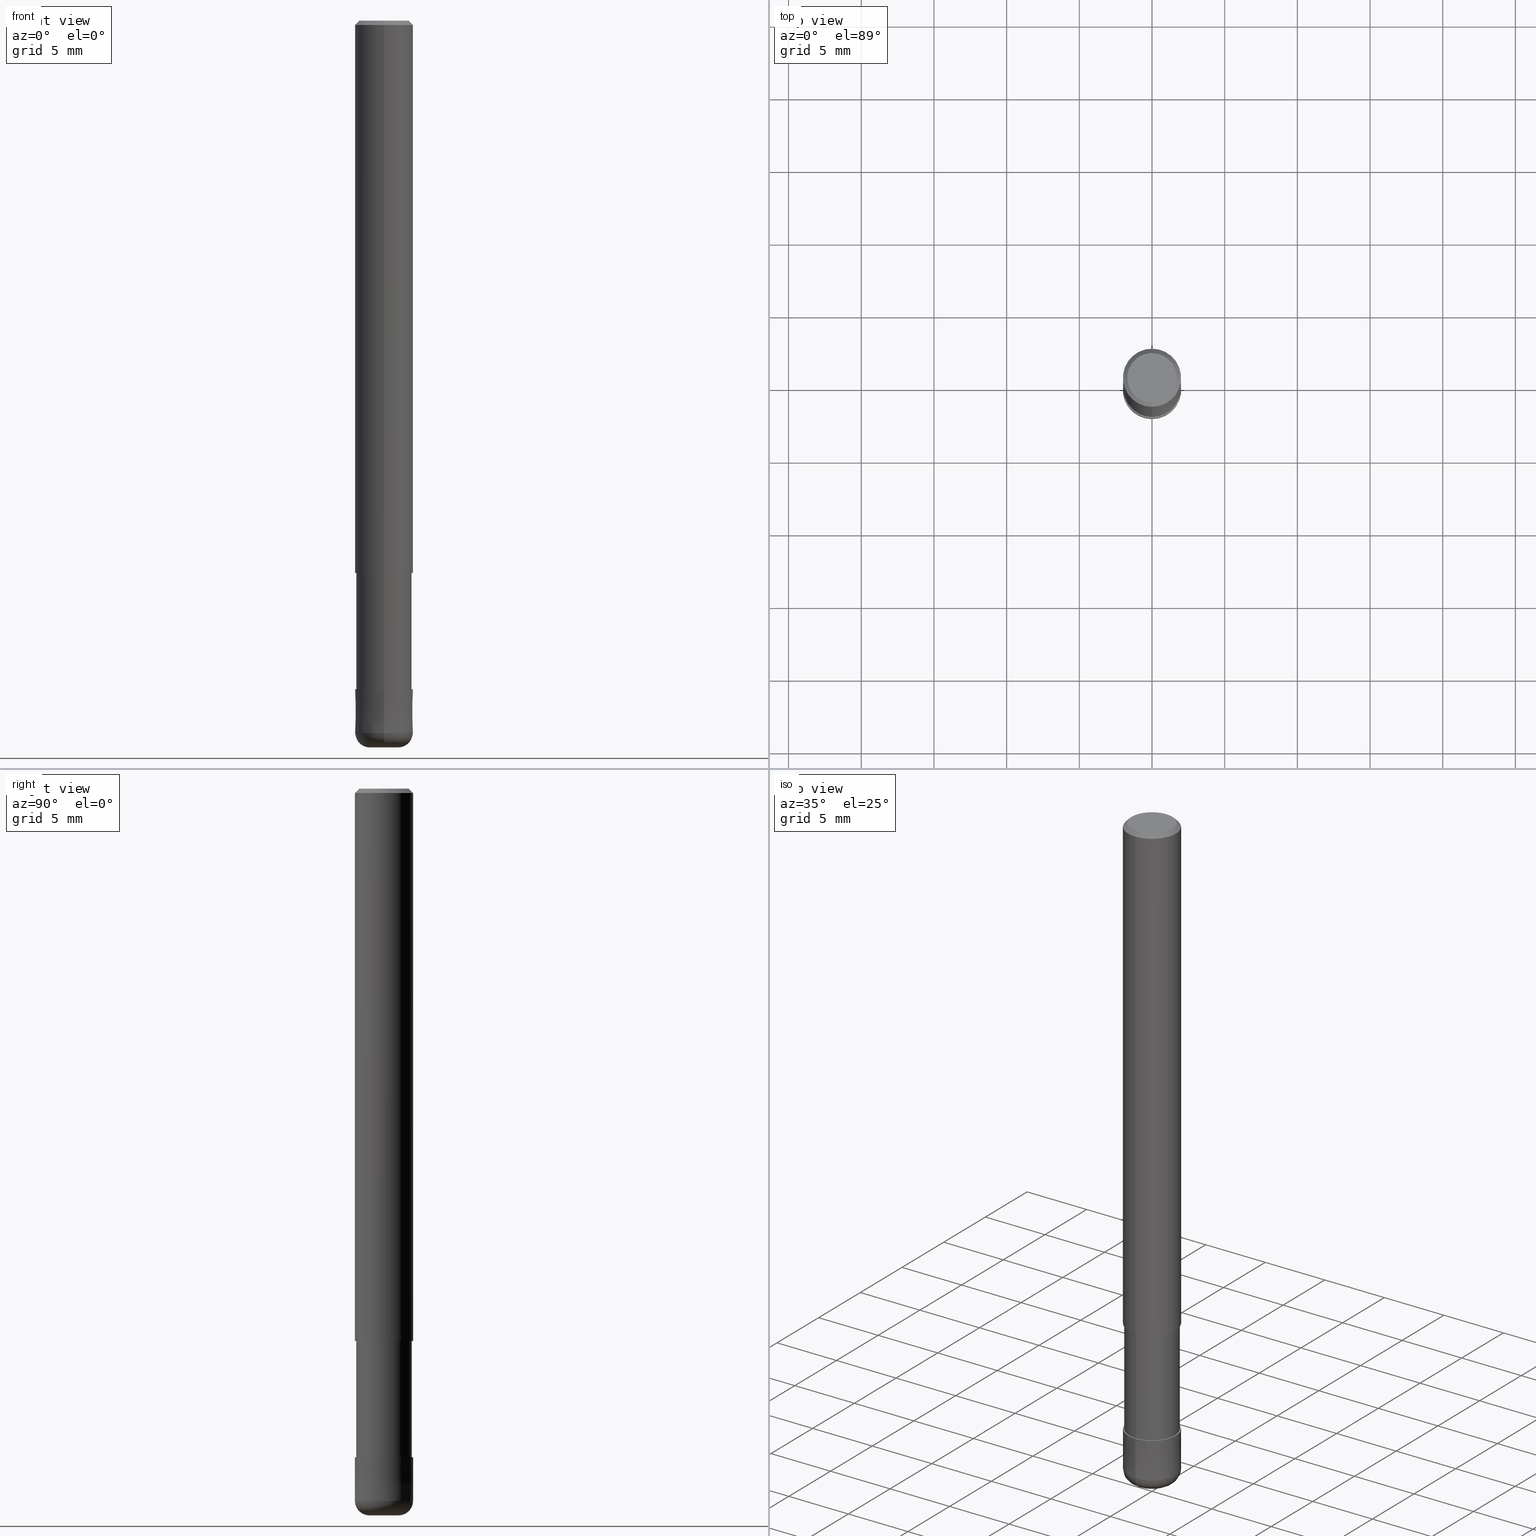
[diagram: canonical four-view strip — front | top / right | iso, engineering-drawing reading convention]
A machine part, canonical four-view strip (front | top / right | iso — engineering-drawing reading convention). The complete STEP part file that produces these views, byte-faithful:
ISO-10303-21;
HEADER;
FILE_DESCRIPTION(('no description'),'unknown implementation level');
FILE_NAME('HRRS4040-10-12S-Huellk.stp','  ',('CIMSOURCE GmbH'),('CADClick - KiM GmbH - www.kimweb.de'),'unknown preprocess','ACIS','unknown authorization');
FILE_SCHEMA(('automotive_design'));
ENDSEC;
DATA;
#1=MECHANICAL_DESIGN_GEOMETRIC_PRESENTATION_REPRESENTATION(' ',(#14,#15,#16,#17,#18,#19,#20,#21,#22,#23,#24,#25,#26,#27,#28,#29,#30,#31,#32,#33,#34,#35,#36,#37,#38,#39,#40,#41,#42,#43,#44,#45,#46,#47,#48,#49,#50,#51,#52,#53,#54,#55,#56,#57,#58,#59,#60,#61,#62,#63,#64,#65,#66,#67,#68,#69,#70,#71,#72),#10);
#2=PRODUCT_DEFINITION_CONTEXT('',#73,'design');
#3=APPLICATION_PROTOCOL_DEFINITION('INTERNATIONAL STANDARD','automotive_design',1994,#73);
#4=PRODUCT_CATEGORY_RELATIONSHIP('NONE','NONE',#74,#75);
#5=SHAPE_DEFINITION_REPRESENTATION(#76,#77);
#6=PRODUCT_DEFINITION_CONTEXT('',#78,'design');
#7=APPLICATION_PROTOCOL_DEFINITION('INTERNATIONAL STANDARD','automotive_design',1994,#78);
#8=PRODUCT_CATEGORY_RELATIONSHIP('NONE','NONE',#79,#80);
#9=SHAPE_DEFINITION_REPRESENTATION(#81,#82);
#10= (GEOMETRIC_REPRESENTATION_CONTEXT(3)GLOBAL_UNCERTAINTY_ASSIGNED_CONTEXT((#85))GLOBAL_UNIT_ASSIGNED_CONTEXT((#87,#88,#89))REPRESENTATION_CONTEXT('NONE','WORKSPACE'));
#14=STYLED_ITEM('',(#91),#92);
#15=STYLED_ITEM('',(#93),#94);
#16=STYLED_ITEM('',(#95),#96);
#17=STYLED_ITEM('',(#97),#98);
#18=STYLED_ITEM('',(#99),#100);
#19=STYLED_ITEM('',(#101),#102);
#20=STYLED_ITEM('',(#103),#104);
#21=STYLED_ITEM('',(#105),#106);
#22=STYLED_ITEM('',(#107),#108);
#23=STYLED_ITEM('',(#109),#110);
#24=STYLED_ITEM('',(#111),#112);
#25=STYLED_ITEM('',(#113),#114);
#26=STYLED_ITEM('',(#115),#116);
#27=STYLED_ITEM('',(#117),#118);
#28=STYLED_ITEM('',(#119),#120);
#29=STYLED_ITEM('',(#121),#122);
#30=STYLED_ITEM('',(#123),#124);
#31=STYLED_ITEM('',(#125),#126);
#32=STYLED_ITEM('',(#127),#128);
#33=STYLED_ITEM('',(#129),#130);
#34=STYLED_ITEM('',(#131),#132);
#35=STYLED_ITEM('',(#133),#134);
#36=STYLED_ITEM('',(#135),#136);
#37=STYLED_ITEM('',(#137),#138);
#38=STYLED_ITEM('',(#139),#140);
#39=STYLED_ITEM('',(#141),#142);
#40=STYLED_ITEM('',(#143),#144);
#41=STYLED_ITEM('',(#145),#146);
#42=STYLED_ITEM('',(#147),#148);
#43=STYLED_ITEM('',(#149),#150);
#44=STYLED_ITEM('',(#151),#152);
#45=STYLED_ITEM('',(#153),#154);
#46=STYLED_ITEM('',(#155),#156);
#47=STYLED_ITEM('',(#157),#158);
#48=STYLED_ITEM('',(#159),#160);
#49=STYLED_ITEM('',(#161),#162);
#50=STYLED_ITEM('',(#163),#164);
#51=STYLED_ITEM('',(#165),#166);
#52=STYLED_ITEM('',(#167),#168);
#53=STYLED_ITEM('',(#169),#170);
#54=STYLED_ITEM('',(#171),#172);
#55=STYLED_ITEM('',(#173),#174);
#56=STYLED_ITEM('',(#175),#176);
#57=STYLED_ITEM('',(#177),#178);
#58=STYLED_ITEM('',(#179),#180);
#59=STYLED_ITEM('',(#181),#182);
#60=STYLED_ITEM('',(#183),#184);
#61=STYLED_ITEM('',(#185),#186);
#62=STYLED_ITEM('',(#187),#188);
#63=STYLED_ITEM('',(#189),#190);
#64=STYLED_ITEM('',(#191),#192);
#65=STYLED_ITEM('',(#193),#194);
#66=STYLED_ITEM('',(#195),#196);
#67=STYLED_ITEM('',(#197),#198);
#68=STYLED_ITEM('',(#199),#200);
#69=STYLED_ITEM('',(#201),#202);
#70=STYLED_ITEM('',(#203),#204);
#71=STYLED_ITEM('',(#205),#206);
#72=STYLED_ITEM('',(#207),#208);
#73=APPLICATION_CONTEXT(' ');
#74=PRODUCT_CATEGORY('part','NONE');
#75=PRODUCT_RELATED_PRODUCT_CATEGORY('detail',' ',(#209));
#76=PRODUCT_DEFINITION_SHAPE('NONE','NONE',#210);
#77=ADVANCED_BREP_SHAPE_REPRESENTATION('1',(#118,#211),#10);
#78=APPLICATION_CONTEXT(' ');
#79=PRODUCT_CATEGORY('part','NONE');
#80=PRODUCT_RELATED_PRODUCT_CATEGORY('detail',' ',(#212));
#81=PRODUCT_DEFINITION_SHAPE('NONE','NONE',#213);
#82=ADVANCED_BREP_SHAPE_REPRESENTATION('2',(#144,#214),#10);
#85=UNCERTAINTY_MEASURE_WITH_UNIT(LENGTH_MEASURE(1.0E-006),#87,'','');
#87= (CONVERSION_BASED_UNIT('MILLIMETRE',#217)LENGTH_UNIT()NAMED_UNIT(#220));
#88= (NAMED_UNIT(#222)PLANE_ANGLE_UNIT()SI_UNIT($,.RADIAN.));
#89= (NAMED_UNIT(#222)SOLID_ANGLE_UNIT()SI_UNIT($,.STERADIAN.));
#91=PRESENTATION_STYLE_ASSIGNMENT((#228));
#92=EDGE_CURVE('',#150,#138,#229,.T.);
#93=PRESENTATION_STYLE_ASSIGNMENT((#230));
#94=ADVANCED_FACE('',(#231,#232),#233,.T.);
#95=PRESENTATION_STYLE_ASSIGNMENT((#234));
#96=EDGE_CURVE('',#160,#204,#235,.T.);
#97=PRESENTATION_STYLE_ASSIGNMENT((#236));
#98=ADVANCED_FACE('',(#237),#238,.T.);
#99=PRESENTATION_STYLE_ASSIGNMENT((#239));
#100=ADVANCED_FACE('',(#240),#241,.T.);
#101=PRESENTATION_STYLE_ASSIGNMENT((#242));
#102=ADVANCED_FACE('',(#243),#244,.T.);
#103=PRESENTATION_STYLE_ASSIGNMENT((#245));
#104=EDGE_CURVE('',#160,#182,#246,.T.);
#105=PRESENTATION_STYLE_ASSIGNMENT((#247));
#106=ADVANCED_FACE('',(#248),#249,.T.);
#107=PRESENTATION_STYLE_ASSIGNMENT((#250));
#108=ADVANCED_FACE('',(#251),#252,.T.);
#109=PRESENTATION_STYLE_ASSIGNMENT((#253));
#110=ADVANCED_FACE('',(#254),#255,.T.);
#111=PRESENTATION_STYLE_ASSIGNMENT((#256));
#112=VERTEX_POINT('',#257);
#113=PRESENTATION_STYLE_ASSIGNMENT((#258));
#114=VERTEX_POINT('',#259);
#115=PRESENTATION_STYLE_ASSIGNMENT((#260));
#116=EDGE_CURVE('',#114,#190,#261,.T.);
#117=PRESENTATION_STYLE_ASSIGNMENT((#262));
#118=MANIFOLD_SOLID_BREP('1',#263);
#119=PRESENTATION_STYLE_ASSIGNMENT((#264));
#120=EDGE_CURVE('',#182,#160,#265,.T.);
#121=PRESENTATION_STYLE_ASSIGNMENT((#266));
#122=EDGE_CURVE('',#124,#180,#267,.T.);
#123=PRESENTATION_STYLE_ASSIGNMENT((#268));
#124=VERTEX_POINT('',#269);
#125=PRESENTATION_STYLE_ASSIGNMENT((#270));
#126=EDGE_CURVE('',#190,#114,#271,.T.);
#127=PRESENTATION_STYLE_ASSIGNMENT((#272));
#128=EDGE_CURVE('',#134,#164,#273,.T.);
#129=PRESENTATION_STYLE_ASSIGNMENT((#274));
#130=ADVANCED_FACE('',(#275),#276,.T.);
#131=PRESENTATION_STYLE_ASSIGNMENT((#277));
#132=EDGE_CURVE('',#134,#166,#278,.T.);
#133=PRESENTATION_STYLE_ASSIGNMENT((#279));
#134=VERTEX_POINT('',#280);
#135=PRESENTATION_STYLE_ASSIGNMENT((#281));
#136=ADVANCED_FACE('',(#282),#283,.T.);
#137=PRESENTATION_STYLE_ASSIGNMENT((#284));
#138=VERTEX_POINT('',#285);
#139=PRESENTATION_STYLE_ASSIGNMENT((#286));
#140=EDGE_CURVE('',#162,#180,#287,.T.);
#141=PRESENTATION_STYLE_ASSIGNMENT((#288));
#142=EDGE_CURVE('',#166,#176,#289,.T.);
#143=PRESENTATION_STYLE_ASSIGNMENT((#290));
#144=MANIFOLD_SOLID_BREP('2',#291);
#145=PRESENTATION_STYLE_ASSIGNMENT((#292));
#146=EDGE_CURVE('',#124,#138,#293,.T.);
#147=PRESENTATION_STYLE_ASSIGNMENT((#294));
#148=EDGE_CURVE('',#138,#124,#295,.T.);
#149=PRESENTATION_STYLE_ASSIGNMENT((#296));
#150=VERTEX_POINT('',#297);
#151=PRESENTATION_STYLE_ASSIGNMENT((#298));
#152=EDGE_CURVE('',#154,#182,#299,.T.);
#153=PRESENTATION_STYLE_ASSIGNMENT((#300));
#154=VERTEX_POINT('',#301);
#155=PRESENTATION_STYLE_ASSIGNMENT((#302));
#156=EDGE_CURVE('',#112,#162,#303,.T.);
#157=PRESENTATION_STYLE_ASSIGNMENT((#304));
#158=EDGE_CURVE('',#150,#180,#305,.T.);
#159=PRESENTATION_STYLE_ASSIGNMENT((#306));
#160=VERTEX_POINT('',#307);
#161=PRESENTATION_STYLE_ASSIGNMENT((#308));
#162=VERTEX_POINT('',#309);
#163=PRESENTATION_STYLE_ASSIGNMENT((#310));
#164=VERTEX_POINT('',#311);
#165=PRESENTATION_STYLE_ASSIGNMENT((#312));
#166=VERTEX_POINT('',#313);
#167=PRESENTATION_STYLE_ASSIGNMENT((#314));
#168=ADVANCED_FACE('',(#315),#316,.T.);
#169=PRESENTATION_STYLE_ASSIGNMENT((#317));
#170=ADVANCED_FACE('',(#318),#319,.T.);
#171=PRESENTATION_STYLE_ASSIGNMENT((#320));
#172=EDGE_CURVE('',#204,#154,#321,.T.);
#173=PRESENTATION_STYLE_ASSIGNMENT((#322));
#174=ADVANCED_FACE('',(#323),#324,.T.);
#175=PRESENTATION_STYLE_ASSIGNMENT((#325));
#176=VERTEX_POINT('',#326);
#177=PRESENTATION_STYLE_ASSIGNMENT((#327));
#178=EDGE_CURVE('',#166,#114,#328,.T.);
#179=PRESENTATION_STYLE_ASSIGNMENT((#329));
#180=VERTEX_POINT('',#330);
#181=PRESENTATION_STYLE_ASSIGNMENT((#331));
#182=VERTEX_POINT('',#332);
#183=PRESENTATION_STYLE_ASSIGNMENT((#333));
#184=EDGE_CURVE('',#176,#166,#334,.T.);
#185=PRESENTATION_STYLE_ASSIGNMENT((#335));
#186=ADVANCED_FACE('',(#336),#337,.T.);
#187=PRESENTATION_STYLE_ASSIGNMENT((#338));
#188=ADVANCED_FACE('',(#339),#340,.T.);
#189=PRESENTATION_STYLE_ASSIGNMENT((#341));
#190=VERTEX_POINT('',#342);
#191=PRESENTATION_STYLE_ASSIGNMENT((#343));
#192=EDGE_CURVE('',#176,#164,#344,.T.);
#193=PRESENTATION_STYLE_ASSIGNMENT((#345));
#194=EDGE_CURVE('',#154,#204,#346,.T.);
#195=PRESENTATION_STYLE_ASSIGNMENT((#347));
#196=EDGE_CURVE('',#180,#150,#348,.T.);
#197=PRESENTATION_STYLE_ASSIGNMENT((#349));
#198=EDGE_CURVE('',#150,#112,#350,.T.);
#199=PRESENTATION_STYLE_ASSIGNMENT((#351));
#200=EDGE_CURVE('',#190,#176,#352,.T.);
#201=PRESENTATION_STYLE_ASSIGNMENT((#353));
#202=EDGE_CURVE('',#162,#112,#354,.T.);
#203=PRESENTATION_STYLE_ASSIGNMENT((#355));
#204=VERTEX_POINT('',#356);
#205=PRESENTATION_STYLE_ASSIGNMENT((#357));
#206=ADVANCED_FACE('',(#358),#359,.T.);
#207=PRESENTATION_STYLE_ASSIGNMENT((#360));
#208=EDGE_CURVE('',#164,#134,#361,.T.);
#209=PRODUCT('1','1','PART-1-DESC',(#362));
#210=PRODUCT_DEFINITION('NONE','NONE',#363,#2);
#211=AXIS2_PLACEMENT_3D('',#364,#365,#366);
#212=PRODUCT('2','2','PART-2-DESC',(#367));
#213=PRODUCT_DEFINITION('NONE','NONE',#368,#6);
#214=AXIS2_PLACEMENT_3D('',#369,#370,#371);
#217=LENGTH_MEASURE_WITH_UNIT(LENGTH_MEASURE(1.0),#372);
#220=DIMENSIONAL_EXPONENTS(1.0,0.0,0.0,0.0,0.0,0.0,0.0);
#222=DIMENSIONAL_EXPONENTS(0.0,0.0,0.0,0.0,0.0,0.0,0.0);
#228=CURVE_STYLE('',#373,POSITIVE_LENGTH_MEASURE(1.0E-006),#374);
#229=LINE('',#375,#376);
#230=SURFACE_STYLE_USAGE(.BOTH.,#377);
#231=FACE_OUTER_BOUND('',#378,.T.);
#232=FACE_BOUND('',#379,.T.);
#233=PLANE('',#380);
#234=CURVE_STYLE('',#381,POSITIVE_LENGTH_MEASURE(1.0E-006),#382);
#235=LINE('',#383,#384);
#236=SURFACE_STYLE_USAGE(.BOTH.,#385);
#237=FACE_OUTER_BOUND('',#386,.T.);
#238=TOROIDAL_SURFACE('',#387,0.999999999999999,1.0);
#239=SURFACE_STYLE_USAGE(.BOTH.,#388);
#240=FACE_OUTER_BOUND('',#389,.T.);
#241=CYLINDRICAL_SURFACE('',#390,2.0);
#242=SURFACE_STYLE_USAGE(.BOTH.,#391);
#243=FACE_OUTER_BOUND('',#392,.T.);
#244=PLANE('',#393);
#245=CURVE_STYLE('',#394,POSITIVE_LENGTH_MEASURE(1.0E-006),#395);
#246=CIRCLE('',#396,1.90995);
#247=SURFACE_STYLE_USAGE(.BOTH.,#397);
#248=FACE_OUTER_BOUND('',#398,.T.);
#249=PLANE('',#399);
#250=SURFACE_STYLE_USAGE(.BOTH.,#400);
#251=FACE_OUTER_BOUND('',#401,.T.);
#252=CONICAL_SURFACE('',#402,1.85,0.785398163397453);
#253=SURFACE_STYLE_USAGE(.BOTH.,#403);
#254=FACE_OUTER_BOUND('',#404,.T.);
#255=CYLINDRICAL_SURFACE('',#405,2.0);
#256=POINT_STYLE(' ',#406,POSITIVE_LENGTH_MEASURE(1.0E-006),#407);
#257=CARTESIAN_POINT('',(1.22460635382238E-016,-1.0,-50.0));
#258=POINT_STYLE(' ',#408,POSITIVE_LENGTH_MEASURE(1.0E-006),#409);
#259=CARTESIAN_POINT('',(0.0,2.0,-38.0));
#260=CURVE_STYLE('',#410,POSITIVE_LENGTH_MEASURE(1.0E-006),#411);
#261=CIRCLE('',#412,2.0);
#262=SURFACE_STYLE_USAGE(.BOTH.,#413);
#263=CLOSED_SHELL('',(#186,#100,#136,#94,#106,#108,#110,#188,#102));
#264=CURVE_STYLE('',#414,POSITIVE_LENGTH_MEASURE(1.0E-006),#415);
#265=CIRCLE('',#416,1.90995);
#266=CURVE_STYLE('',#417,POSITIVE_LENGTH_MEASURE(1.0E-006),#418);
#267=LINE('',#419,#420);
#268=POINT_STYLE(' ',#421,POSITIVE_LENGTH_MEASURE(1.0E-006),#422);
#269=CARTESIAN_POINT('',(0.0,1.9999,-46.0));
#270=CURVE_STYLE('',#423,POSITIVE_LENGTH_MEASURE(1.0E-006),#424);
#271=CIRCLE('',#425,2.0);
#272=CURVE_STYLE('',#426,POSITIVE_LENGTH_MEASURE(1.0E-006),#427);
#273=CIRCLE('',#428,1.7);
#274=SURFACE_STYLE_USAGE(.BOTH.,#429);
#275=FACE_OUTER_BOUND('',#430,.T.);
#276=PLANE('',#431);
#277=CURVE_STYLE('',#432,POSITIVE_LENGTH_MEASURE(1.0E-006),#433);
#278=LINE('',#434,#435);
#279=POINT_STYLE(' ',#436,POSITIVE_LENGTH_MEASURE(1.0E-006),#437);
#280=CARTESIAN_POINT('',(0.0,1.7,0.0));
#281=SURFACE_STYLE_USAGE(.BOTH.,#438);
#282=FACE_OUTER_BOUND('',#439,.T.);
#283=CONICAL_SURFACE('',#440,1.85,0.785398163397453);
#284=POINT_STYLE(' ',#441,POSITIVE_LENGTH_MEASURE(1.0E-006),#442);
#285=CARTESIAN_POINT('',(2.44909024700937E-016,-1.9999,-46.0));
#286=CURVE_STYLE('',#443,POSITIVE_LENGTH_MEASURE(1.0E-006),#444);
#287=CIRCLE('',#445,1.0);
#288=CURVE_STYLE('',#446,POSITIVE_LENGTH_MEASURE(1.0E-006),#447);
#289=CIRCLE('',#448,2.0);
#290=SURFACE_STYLE_USAGE(.BOTH.,#449);
#291=CLOSED_SHELL('',(#98,#168,#130,#206,#174,#170));
#292=CURVE_STYLE('',#450,POSITIVE_LENGTH_MEASURE(1.0E-006),#451);
#293=CIRCLE('',#452,1.9999);
#294=CURVE_STYLE('',#453,POSITIVE_LENGTH_MEASURE(1.0E-006),#454);
#295=CIRCLE('',#455,1.9999);
#296=POINT_STYLE(' ',#456,POSITIVE_LENGTH_MEASURE(1.0E-006),#457);
#297=CARTESIAN_POINT('',(2.44921270764475E-016,-2.0,-49.0));
#298=CURVE_STYLE('',#458,POSITIVE_LENGTH_MEASURE(1.0E-006),#459);
#299=LINE('',#460,#461);
#300=POINT_STYLE(' ',#462,POSITIVE_LENGTH_MEASURE(1.0E-006),#463);
#301=CARTESIAN_POINT('',(2.33893690548305E-016,-1.90995,-46.0));
#302=CURVE_STYLE('',#464,POSITIVE_LENGTH_MEASURE(1.0E-006),#465);
#303=CIRCLE('',#466,1.0);
#304=CURVE_STYLE('',#467,POSITIVE_LENGTH_MEASURE(1.0E-006),#468);
#305=CIRCLE('',#469,2.0);
#306=POINT_STYLE(' ',#470,POSITIVE_LENGTH_MEASURE(1.0E-006),#471);
#307=CARTESIAN_POINT('',(0.0,1.90995,-38.0));
#308=POINT_STYLE(' ',#472,POSITIVE_LENGTH_MEASURE(1.0E-006),#473);
#309=CARTESIAN_POINT('',(0.0,1.0,-50.0));
#310=POINT_STYLE(' ',#474,POSITIVE_LENGTH_MEASURE(1.0E-006),#475);
#311=CARTESIAN_POINT('',(2.08183080149804E-016,-1.7,0.0));
#312=POINT_STYLE(' ',#476,POSITIVE_LENGTH_MEASURE(1.0E-006),#477);
#313=CARTESIAN_POINT('',(0.0,2.0,-0.299999999999997));
#314=SURFACE_STYLE_USAGE(.BOTH.,#478);
#315=FACE_OUTER_BOUND('',#479,.T.);
#316=CONICAL_SURFACE('',#480,1.99995,3.3333333320984E-005);
#317=SURFACE_STYLE_USAGE(.BOTH.,#481);
#318=FACE_OUTER_BOUND('',#482,.T.);
#319=PLANE('',#483);
#320=CURVE_STYLE('',#484,POSITIVE_LENGTH_MEASURE(1.0E-006),#485);
#321=CIRCLE('',#486,1.90995);
#322=SURFACE_STYLE_USAGE(.BOTH.,#487);
#323=FACE_OUTER_BOUND('',#488,.T.);
#324=TOROIDAL_SURFACE('',#489,0.999999999999999,1.0);
#325=POINT_STYLE(' ',#490,POSITIVE_LENGTH_MEASURE(1.0E-006),#491);
#326=CARTESIAN_POINT('',(2.44921270764475E-016,-2.0,-0.299999999999997));
#327=CURVE_STYLE('',#492,POSITIVE_LENGTH_MEASURE(1.0E-006),#493);
#328=LINE('',#494,#495);
#329=POINT_STYLE(' ',#496,POSITIVE_LENGTH_MEASURE(1.0E-006),#497);
#330=CARTESIAN_POINT('',(0.0,2.0,-49.0));
#331=POINT_STYLE(' ',#498,POSITIVE_LENGTH_MEASURE(1.0E-006),#499);
#332=CARTESIAN_POINT('',(2.33893690548305E-016,-1.90995,-38.0));
#333=CURVE_STYLE('',#500,POSITIVE_LENGTH_MEASURE(1.0E-006),#501);
#334=CIRCLE('',#502,2.0);
#335=SURFACE_STYLE_USAGE(.BOTH.,#503);
#336=FACE_OUTER_BOUND('',#504,.T.);
#337=CYLINDRICAL_SURFACE('',#505,1.90995);
#338=SURFACE_STYLE_USAGE(.BOTH.,#506);
#339=FACE_OUTER_BOUND('',#507,.T.);
#340=CYLINDRICAL_SURFACE('',#508,1.90995);
#341=POINT_STYLE(' ',#509,POSITIVE_LENGTH_MEASURE(1.0E-006),#510);
#342=CARTESIAN_POINT('',(2.44921270764475E-016,-2.0,-38.0));
#343=CURVE_STYLE('',#511,POSITIVE_LENGTH_MEASURE(1.0E-006),#512);
#344=LINE('',#513,#514);
#345=CURVE_STYLE('',#515,POSITIVE_LENGTH_MEASURE(1.0E-006),#516);
#346=CIRCLE('',#517,1.90995);
#347=CURVE_STYLE('',#518,POSITIVE_LENGTH_MEASURE(1.0E-006),#519);
#348=CIRCLE('',#520,2.0);
#349=CURVE_STYLE('',#521,POSITIVE_LENGTH_MEASURE(1.0E-006),#522);
#350=CIRCLE('',#523,1.0);
#351=CURVE_STYLE('',#524,POSITIVE_LENGTH_MEASURE(1.0E-006),#525);
#352=LINE('',#526,#527);
#353=CURVE_STYLE('',#528,POSITIVE_LENGTH_MEASURE(1.0E-006),#529);
#354=CIRCLE('',#530,1.0);
#355=POINT_STYLE(' ',#531,POSITIVE_LENGTH_MEASURE(1.0E-006),#532);
#356=CARTESIAN_POINT('',(0.0,1.90995,-46.0));
#357=SURFACE_STYLE_USAGE(.BOTH.,#533);
#358=FACE_OUTER_BOUND('',#534,.T.);
#359=CONICAL_SURFACE('',#535,1.99995,3.3333333320984E-005);
#360=CURVE_STYLE('',#536,POSITIVE_LENGTH_MEASURE(1.0E-006),#537);
#361=CIRCLE('',#538,1.7);
#362=PRODUCT_CONTEXT('',#73,'mechanical');
#363=PRODUCT_DEFINITION_FORMATION_WITH_SPECIFIED_SOURCE(' ','NONE',#209,.NOT_KNOWN.);
#364=CARTESIAN_POINT('',(0.0,0.0,0.0));
#365=DIRECTION('',(0.0,0.0,1.0));
#366=DIRECTION('',(1.0,0.0,0.0));
#367=PRODUCT_CONTEXT('',#78,'mechanical');
#368=PRODUCT_DEFINITION_FORMATION_WITH_SPECIFIED_SOURCE(' ','NONE',#212,.NOT_KNOWN.);
#369=CARTESIAN_POINT('',(0.0,0.0,0.0));
#370=DIRECTION('',(0.0,0.0,1.0));
#371=DIRECTION('',(1.0,0.0,0.0));
#372= (NAMED_UNIT(#220)LENGTH_UNIT()SI_UNIT(.MILLI.,.METRE.));
#373=DRAUGHTING_PRE_DEFINED_CURVE_FONT('continuous');
#374=COLOUR_RGB('',0.800000011920929,0.800000011920929,0.800000011920929);
#375=CARTESIAN_POINT('',(2.44915147732706E-016,-1.99995,-47.5));
#376=VECTOR('',#540,1.0);
#377=SURFACE_SIDE_STYLE('',(#541));
#378=EDGE_LOOP('',(#542,#543));
#379=EDGE_LOOP('',(#544,#545));
#380=AXIS2_PLACEMENT_3D('',#546,#547,#548);
#381=DRAUGHTING_PRE_DEFINED_CURVE_FONT('continuous');
#382=COLOUR_RGB('',0.498039215803146,0.498039215803146,0.498039215803146);
#383=CARTESIAN_POINT('',(-2.33893690548305E-016,1.90995,-42.0));
#384=VECTOR('',#549,1.0);
#385=SURFACE_SIDE_STYLE('',(#550));
#386=EDGE_LOOP('',(#551,#552,#553,#554));
#387=AXIS2_PLACEMENT_3D('',#555,#556,#557);
#388=SURFACE_SIDE_STYLE('',(#558));
#389=EDGE_LOOP('',(#559,#560,#561,#562));
#390=AXIS2_PLACEMENT_3D('',#563,#564,#565);
#391=SURFACE_SIDE_STYLE('',(#566));
#392=EDGE_LOOP('',(#567,#568));
#393=AXIS2_PLACEMENT_3D('',#569,#570,#571);
#394=DRAUGHTING_PRE_DEFINED_CURVE_FONT('continuous');
#395=COLOUR_RGB('',0.498039215803146,0.498039215803146,0.498039215803146);
#396=AXIS2_PLACEMENT_3D('',#572,#573,#574);
#397=SURFACE_SIDE_STYLE('',(#575));
#398=EDGE_LOOP('',(#576,#577));
#399=AXIS2_PLACEMENT_3D('',#578,#579,#580);
#400=SURFACE_SIDE_STYLE('',(#581));
#401=EDGE_LOOP('',(#582,#583,#584,#585));
#402=AXIS2_PLACEMENT_3D('',#586,#587,#588);
#403=SURFACE_SIDE_STYLE('',(#589));
#404=EDGE_LOOP('',(#590,#591,#592,#593));
#405=AXIS2_PLACEMENT_3D('',#594,#595,#596);
#406=PRE_DEFINED_MARKER('');
#407=COLOUR_RGB('',0.800000011920929,0.800000011920929,0.800000011920929);
#408=PRE_DEFINED_MARKER('');
#409=COLOUR_RGB('',0.498039215803146,0.498039215803146,0.498039215803146);
#410=DRAUGHTING_PRE_DEFINED_CURVE_FONT('continuous');
#411=COLOUR_RGB('',0.498039215803146,0.498039215803146,0.498039215803146);
#412=AXIS2_PLACEMENT_3D('',#597,#598,#599);
#413=SURFACE_SIDE_STYLE('',(#600));
#414=DRAUGHTING_PRE_DEFINED_CURVE_FONT('continuous');
#415=COLOUR_RGB('',0.498039215803146,0.498039215803146,0.498039215803146);
#416=AXIS2_PLACEMENT_3D('',#601,#602,#603);
#417=DRAUGHTING_PRE_DEFINED_CURVE_FONT('continuous');
#418=COLOUR_RGB('',0.800000011920929,0.800000011920929,0.800000011920929);
#419=CARTESIAN_POINT('',(-2.44915147732706E-016,1.99995,-47.5));
#420=VECTOR('',#604,1.0);
#421=PRE_DEFINED_MARKER('');
#422=COLOUR_RGB('',0.800000011920929,0.800000011920929,0.800000011920929);
#423=DRAUGHTING_PRE_DEFINED_CURVE_FONT('continuous');
#424=COLOUR_RGB('',0.498039215803146,0.498039215803146,0.498039215803146);
#425=AXIS2_PLACEMENT_3D('',#605,#606,#607);
#426=DRAUGHTING_PRE_DEFINED_CURVE_FONT('continuous');
#427=COLOUR_RGB('',0.498039215803146,0.498039215803146,0.498039215803146);
#428=AXIS2_PLACEMENT_3D('',#608,#609,#610);
#429=SURFACE_SIDE_STYLE('',(#611));
#430=EDGE_LOOP('',(#612,#613));
#431=AXIS2_PLACEMENT_3D('',#614,#615,#616);
#432=DRAUGHTING_PRE_DEFINED_CURVE_FONT('continuous');
#433=COLOUR_RGB('',0.498039215803146,0.498039215803146,0.498039215803146);
#434=CARTESIAN_POINT('',(-2.2655217545714E-016,1.85,-0.149999999999999));
#435=VECTOR('',#617,1.0);
#436=PRE_DEFINED_MARKER('');
#437=COLOUR_RGB('',0.498039215803146,0.498039215803146,0.498039215803146);
#438=SURFACE_SIDE_STYLE('',(#618));
#439=EDGE_LOOP('',(#619,#620,#621,#622));
#440=AXIS2_PLACEMENT_3D('',#623,#624,#625);
#441=PRE_DEFINED_MARKER('');
#442=COLOUR_RGB('',0.800000011920929,0.800000011920929,0.800000011920929);
#443=DRAUGHTING_PRE_DEFINED_CURVE_FONT('continuous');
#444=COLOUR_RGB('',0.800000011920929,0.800000011920929,0.800000011920929);
#445=AXIS2_PLACEMENT_3D('',#626,#627,#628);
#446=DRAUGHTING_PRE_DEFINED_CURVE_FONT('continuous');
#447=COLOUR_RGB('',0.498039215803146,0.498039215803146,0.498039215803146);
#448=AXIS2_PLACEMENT_3D('',#629,#630,#631);
#449=SURFACE_SIDE_STYLE('',(#632));
#450=DRAUGHTING_PRE_DEFINED_CURVE_FONT('continuous');
#451=COLOUR_RGB('',0.800000011920929,0.800000011920929,0.800000011920929);
#452=AXIS2_PLACEMENT_3D('',#633,#634,#635);
#453=DRAUGHTING_PRE_DEFINED_CURVE_FONT('continuous');
#454=COLOUR_RGB('',0.800000011920929,0.800000011920929,0.800000011920929);
#455=AXIS2_PLACEMENT_3D('',#636,#637,#638);
#456=PRE_DEFINED_MARKER('');
#457=COLOUR_RGB('',0.800000011920929,0.800000011920929,0.800000011920929);
#458=DRAUGHTING_PRE_DEFINED_CURVE_FONT('continuous');
#459=COLOUR_RGB('',0.498039215803146,0.498039215803146,0.498039215803146);
#460=CARTESIAN_POINT('',(2.33893690548305E-016,-1.90995,-42.0));
#461=VECTOR('',#639,1.0);
#462=PRE_DEFINED_MARKER('');
#463=COLOUR_RGB('',0.498039215803146,0.498039215803146,0.498039215803146);
#464=DRAUGHTING_PRE_DEFINED_CURVE_FONT('continuous');
#465=COLOUR_RGB('',0.800000011920929,0.800000011920929,0.800000011920929);
#466=AXIS2_PLACEMENT_3D('',#640,#641,#642);
#467=DRAUGHTING_PRE_DEFINED_CURVE_FONT('continuous');
#468=COLOUR_RGB('',0.800000011920929,0.800000011920929,0.800000011920929);
#469=AXIS2_PLACEMENT_3D('',#643,#644,#645);
#470=PRE_DEFINED_MARKER('');
#471=COLOUR_RGB('',0.498039215803146,0.498039215803146,0.498039215803146);
#472=PRE_DEFINED_MARKER('');
#473=COLOUR_RGB('',0.800000011920929,0.800000011920929,0.800000011920929);
#474=PRE_DEFINED_MARKER('');
#475=COLOUR_RGB('',0.498039215803146,0.498039215803146,0.498039215803146);
#476=PRE_DEFINED_MARKER('');
#477=COLOUR_RGB('',0.498039215803146,0.498039215803146,0.498039215803146);
#478=SURFACE_SIDE_STYLE('',(#646));
#479=EDGE_LOOP('',(#647,#648,#649,#650));
#480=AXIS2_PLACEMENT_3D('',#651,#652,#653);
#481=SURFACE_SIDE_STYLE('',(#654));
#482=EDGE_LOOP('',(#655,#656));
#483=AXIS2_PLACEMENT_3D('',#657,#658,#659);
#484=DRAUGHTING_PRE_DEFINED_CURVE_FONT('continuous');
#485=COLOUR_RGB('',0.498039215803146,0.498039215803146,0.498039215803146);
#486=AXIS2_PLACEMENT_3D('',#660,#661,#662);
#487=SURFACE_SIDE_STYLE('',(#663));
#488=EDGE_LOOP('',(#664,#665,#666,#667));
#489=AXIS2_PLACEMENT_3D('',#668,#669,#670);
#490=PRE_DEFINED_MARKER('');
#491=COLOUR_RGB('',0.498039215803146,0.498039215803146,0.498039215803146);
#492=DRAUGHTING_PRE_DEFINED_CURVE_FONT('continuous');
#493=COLOUR_RGB('',0.498039215803146,0.498039215803146,0.498039215803146);
#494=CARTESIAN_POINT('',(-2.44921270764475E-016,2.0,-19.15));
#495=VECTOR('',#671,1.0);
#496=PRE_DEFINED_MARKER('');
#497=COLOUR_RGB('',0.800000011920929,0.800000011920929,0.800000011920929);
#498=PRE_DEFINED_MARKER('');
#499=COLOUR_RGB('',0.498039215803146,0.498039215803146,0.498039215803146);
#500=DRAUGHTING_PRE_DEFINED_CURVE_FONT('continuous');
#501=COLOUR_RGB('',0.498039215803146,0.498039215803146,0.498039215803146);
#502=AXIS2_PLACEMENT_3D('',#672,#673,#674);
#503=SURFACE_SIDE_STYLE('',(#675));
#504=EDGE_LOOP('',(#676,#677,#678,#679));
#505=AXIS2_PLACEMENT_3D('',#680,#681,#682);
#506=SURFACE_SIDE_STYLE('',(#683));
#507=EDGE_LOOP('',(#684,#685,#686,#687));
#508=AXIS2_PLACEMENT_3D('',#688,#689,#690);
#509=PRE_DEFINED_MARKER('');
#510=COLOUR_RGB('',0.498039215803146,0.498039215803146,0.498039215803146);
#511=DRAUGHTING_PRE_DEFINED_CURVE_FONT('continuous');
#512=COLOUR_RGB('',0.498039215803146,0.498039215803146,0.498039215803146);
#513=CARTESIAN_POINT('',(2.2655217545714E-016,-1.85,-0.149999999999999));
#514=VECTOR('',#691,1.0);
#515=DRAUGHTING_PRE_DEFINED_CURVE_FONT('continuous');
#516=COLOUR_RGB('',0.498039215803146,0.498039215803146,0.498039215803146);
#517=AXIS2_PLACEMENT_3D('',#692,#693,#694);
#518=DRAUGHTING_PRE_DEFINED_CURVE_FONT('continuous');
#519=COLOUR_RGB('',0.800000011920929,0.800000011920929,0.800000011920929);
#520=AXIS2_PLACEMENT_3D('',#695,#696,#697);
#521=DRAUGHTING_PRE_DEFINED_CURVE_FONT('continuous');
#522=COLOUR_RGB('',0.800000011920929,0.800000011920929,0.800000011920929);
#523=AXIS2_PLACEMENT_3D('',#698,#699,#700);
#524=DRAUGHTING_PRE_DEFINED_CURVE_FONT('continuous');
#525=COLOUR_RGB('',0.498039215803146,0.498039215803146,0.498039215803146);
#526=CARTESIAN_POINT('',(2.44921270764475E-016,-2.0,-19.15));
#527=VECTOR('',#701,1.0);
#528=DRAUGHTING_PRE_DEFINED_CURVE_FONT('continuous');
#529=COLOUR_RGB('',0.800000011920929,0.800000011920929,0.800000011920929);
#530=AXIS2_PLACEMENT_3D('',#702,#703,#704);
#531=PRE_DEFINED_MARKER('');
#532=COLOUR_RGB('',0.498039215803146,0.498039215803146,0.498039215803146);
#533=SURFACE_SIDE_STYLE('',(#705));
#534=EDGE_LOOP('',(#706,#707,#708,#709));
#535=AXIS2_PLACEMENT_3D('',#710,#711,#712);
#536=DRAUGHTING_PRE_DEFINED_CURVE_FONT('continuous');
#537=COLOUR_RGB('',0.498039215803146,0.498039215803146,0.498039215803146);
#538=AXIS2_PLACEMENT_3D('',#713,#714,#715);
#540=DIRECTION('',(-4.08202117713969E-021,3.33333333148111E-005,0.999999999444445));
#541=SURFACE_STYLE_FILL_AREA(#716);
#542=ORIENTED_EDGE('',*,*,#116,.T.);
#543=ORIENTED_EDGE('',*,*,#126,.T.);
#544=ORIENTED_EDGE('',*,*,#104,.F.);
#545=ORIENTED_EDGE('',*,*,#120,.F.);
#546=CARTESIAN_POINT('',(0.0,1.0,-38.0));
#547=DIRECTION('',(0.0,0.0,-1.0));
#548=DIRECTION('',(0.0,1.0,0.0));
#549=DIRECTION('',(0.0,0.0,-1.0));
#550=SURFACE_STYLE_FILL_AREA(#717);
#551=ORIENTED_EDGE('',*,*,#198,.F.);
#552=ORIENTED_EDGE('',*,*,#158,.T.);
#553=ORIENTED_EDGE('',*,*,#140,.F.);
#554=ORIENTED_EDGE('',*,*,#156,.F.);
#555=CARTESIAN_POINT('',(0.0,0.0,-49.0));
#556=DIRECTION('',(0.0,0.0,-1.0));
#557=DIRECTION('',(0.0,-1.0,0.0));
#558=SURFACE_STYLE_FILL_AREA(#718);
#559=ORIENTED_EDGE('',*,*,#178,.F.);
#560=ORIENTED_EDGE('',*,*,#142,.T.);
#561=ORIENTED_EDGE('',*,*,#200,.F.);
#562=ORIENTED_EDGE('',*,*,#116,.F.);
#563=CARTESIAN_POINT('',(0.0,0.0,-19.15));
#564=DIRECTION('',(-0.0,-0.0,1.0));
#565=DIRECTION('',(0.0,1.0,0.0));
#566=SURFACE_STYLE_FILL_AREA(#719);
#567=ORIENTED_EDGE('',*,*,#172,.T.);
#568=ORIENTED_EDGE('',*,*,#194,.T.);
#569=CARTESIAN_POINT('',(0.0,0.954975,-46.0));
#570=DIRECTION('',(0.0,0.0,-1.0));
#571=DIRECTION('',(0.0,1.0,0.0));
#572=CARTESIAN_POINT('',(0.0,0.0,-38.0));
#573=DIRECTION('',(0.0,0.0,-1.0));
#574=DIRECTION('',(0.0,1.0,0.0));
#575=SURFACE_STYLE_FILL_AREA(#720);
#576=ORIENTED_EDGE('',*,*,#128,.F.);
#577=ORIENTED_EDGE('',*,*,#208,.F.);
#578=CARTESIAN_POINT('',(0.0,0.85,0.0));
#579=DIRECTION('',(-0.0,0.0,1.0));
#580=DIRECTION('',(0.0,-1.0,0.0));
#581=SURFACE_STYLE_FILL_AREA(#721);
#582=ORIENTED_EDGE('',*,*,#132,.T.);
#583=ORIENTED_EDGE('',*,*,#184,.F.);
#584=ORIENTED_EDGE('',*,*,#192,.T.);
#585=ORIENTED_EDGE('',*,*,#208,.T.);
#586=CARTESIAN_POINT('',(0.0,0.0,-0.149999999999999));
#587=DIRECTION('',(0.0,-0.0,-1.0));
#588=DIRECTION('',(0.0,1.0,0.0));
#589=SURFACE_STYLE_FILL_AREA(#722);
#590=ORIENTED_EDGE('',*,*,#178,.T.);
#591=ORIENTED_EDGE('',*,*,#126,.F.);
#592=ORIENTED_EDGE('',*,*,#200,.T.);
#593=ORIENTED_EDGE('',*,*,#184,.T.);
#594=CARTESIAN_POINT('',(0.0,0.0,-19.15));
#595=DIRECTION('',(-0.0,-0.0,1.0));
#596=DIRECTION('',(0.0,1.0,0.0));
#597=CARTESIAN_POINT('',(0.0,0.0,-38.0));
#598=DIRECTION('',(0.0,0.0,-1.0));
#599=DIRECTION('',(0.0,1.0,0.0));
#600=SURFACE_STYLE_FILL_AREA(#723);
#601=CARTESIAN_POINT('',(0.0,0.0,-38.0));
#602=DIRECTION('',(0.0,0.0,-1.0));
#603=DIRECTION('',(0.0,1.0,0.0));
#604=DIRECTION('',(-4.08202117713969E-021,3.33333333148111E-005,-0.999999999444445));
#605=CARTESIAN_POINT('',(0.0,0.0,-38.0));
#606=DIRECTION('',(0.0,0.0,-1.0));
#607=DIRECTION('',(0.0,1.0,0.0));
#608=CARTESIAN_POINT('',(0.0,0.0,0.0));
#609=DIRECTION('',(0.0,0.0,-1.0));
#610=DIRECTION('',(0.0,1.0,0.0));
#611=SURFACE_STYLE_FILL_AREA(#724);
#612=ORIENTED_EDGE('',*,*,#146,.F.);
#613=ORIENTED_EDGE('',*,*,#148,.F.);
#614=CARTESIAN_POINT('',(0.0,0.99995,-46.0));
#615=DIRECTION('',(-0.0,0.0,1.0));
#616=DIRECTION('',(0.0,-1.0,0.0));
#617=DIRECTION('',(-8.6592745707194E-017,0.707106781186551,-0.707106781186544));
#618=SURFACE_STYLE_FILL_AREA(#725);
#619=ORIENTED_EDGE('',*,*,#132,.F.);
#620=ORIENTED_EDGE('',*,*,#128,.T.);
#621=ORIENTED_EDGE('',*,*,#192,.F.);
#622=ORIENTED_EDGE('',*,*,#142,.F.);
#623=CARTESIAN_POINT('',(0.0,0.0,-0.149999999999999));
#624=DIRECTION('',(0.0,-0.0,-1.0));
#625=DIRECTION('',(0.0,1.0,0.0));
#626=CARTESIAN_POINT('',(-1.22460635382238E-016,0.999999999999999,-49.0));
#627=DIRECTION('',(1.0,1.22460635382238E-016,0.0));
#628=DIRECTION('',(-1.22460635382238E-016,1.0,0.0));
#629=CARTESIAN_POINT('',(0.0,0.0,-0.299999999999997));
#630=DIRECTION('',(0.0,0.0,-1.0));
#631=DIRECTION('',(0.0,1.0,0.0));
#632=SURFACE_STYLE_FILL_AREA(#726);
#633=CARTESIAN_POINT('',(0.0,0.0,-46.0));
#634=DIRECTION('',(0.0,0.0,-1.0));
#635=DIRECTION('',(0.0,1.0,0.0));
#636=CARTESIAN_POINT('',(0.0,0.0,-46.0));
#637=DIRECTION('',(0.0,0.0,-1.0));
#638=DIRECTION('',(0.0,1.0,0.0));
#639=DIRECTION('',(-0.0,-0.0,1.0));
#640=CARTESIAN_POINT('',(0.0,0.0,-50.0));
#641=DIRECTION('',(0.0,0.0,-1.0));
#642=DIRECTION('',(0.0,1.0,0.0));
#643=CARTESIAN_POINT('',(0.0,0.0,-49.0));
#644=DIRECTION('',(0.0,0.0,-1.0));
#645=DIRECTION('',(0.0,1.0,0.0));
#646=SURFACE_STYLE_FILL_AREA(#727);
#647=ORIENTED_EDGE('',*,*,#122,.F.);
#648=ORIENTED_EDGE('',*,*,#146,.T.);
#649=ORIENTED_EDGE('',*,*,#92,.F.);
#650=ORIENTED_EDGE('',*,*,#196,.F.);
#651=CARTESIAN_POINT('',(0.0,0.0,-47.5));
#652=DIRECTION('',(0.0,-0.0,-1.0));
#653=DIRECTION('',(0.0,1.0,0.0));
#654=SURFACE_STYLE_FILL_AREA(#728);
#655=ORIENTED_EDGE('',*,*,#202,.T.);
#656=ORIENTED_EDGE('',*,*,#156,.T.);
#657=CARTESIAN_POINT('',(0.0,0.5,-50.0));
#658=DIRECTION('',(0.0,0.0,-1.0));
#659=DIRECTION('',(0.0,1.0,0.0));
#660=CARTESIAN_POINT('',(0.0,0.0,-46.0));
#661=DIRECTION('',(0.0,0.0,-1.0));
#662=DIRECTION('',(0.0,1.0,0.0));
#663=SURFACE_STYLE_FILL_AREA(#729);
#664=ORIENTED_EDGE('',*,*,#198,.T.);
#665=ORIENTED_EDGE('',*,*,#202,.F.);
#666=ORIENTED_EDGE('',*,*,#140,.T.);
#667=ORIENTED_EDGE('',*,*,#196,.T.);
#668=CARTESIAN_POINT('',(0.0,0.0,-49.0));
#669=DIRECTION('',(0.0,0.0,-1.0));
#670=DIRECTION('',(0.0,-1.0,0.0));
#671=DIRECTION('',(0.0,0.0,-1.0));
#672=CARTESIAN_POINT('',(0.0,0.0,-0.299999999999997));
#673=DIRECTION('',(0.0,0.0,-1.0));
#674=DIRECTION('',(0.0,1.0,0.0));
#675=SURFACE_STYLE_FILL_AREA(#730);
#676=ORIENTED_EDGE('',*,*,#96,.F.);
#677=ORIENTED_EDGE('',*,*,#104,.T.);
#678=ORIENTED_EDGE('',*,*,#152,.F.);
#679=ORIENTED_EDGE('',*,*,#172,.F.);
#680=CARTESIAN_POINT('',(0.0,0.0,-42.0));
#681=DIRECTION('',(-0.0,-0.0,1.0));
#682=DIRECTION('',(0.0,1.0,0.0));
#683=SURFACE_STYLE_FILL_AREA(#731);
#684=ORIENTED_EDGE('',*,*,#96,.T.);
#685=ORIENTED_EDGE('',*,*,#194,.F.);
#686=ORIENTED_EDGE('',*,*,#152,.T.);
#687=ORIENTED_EDGE('',*,*,#120,.T.);
#688=CARTESIAN_POINT('',(0.0,0.0,-42.0));
#689=DIRECTION('',(-0.0,-0.0,1.0));
#690=DIRECTION('',(0.0,1.0,0.0));
#691=DIRECTION('',(-8.6592745707194E-017,0.707106781186551,0.707106781186544));
#692=CARTESIAN_POINT('',(0.0,0.0,-46.0));
#693=DIRECTION('',(0.0,0.0,-1.0));
#694=DIRECTION('',(0.0,1.0,0.0));
#695=CARTESIAN_POINT('',(0.0,0.0,-49.0));
#696=DIRECTION('',(0.0,0.0,-1.0));
#697=DIRECTION('',(0.0,1.0,0.0));
#698=CARTESIAN_POINT('',(1.22460635382238E-016,-0.999999999999999,-49.0));
#699=DIRECTION('',(1.0,1.22460635382238E-016,0.0));
#700=DIRECTION('',(1.22460635382238E-016,-1.0,-0.0));
#701=DIRECTION('',(-0.0,-0.0,1.0));
#702=CARTESIAN_POINT('',(0.0,0.0,-50.0));
#703=DIRECTION('',(0.0,0.0,-1.0));
#704=DIRECTION('',(0.0,1.0,0.0));
#705=SURFACE_STYLE_FILL_AREA(#732);
#706=ORIENTED_EDGE('',*,*,#122,.T.);
#707=ORIENTED_EDGE('',*,*,#158,.F.);
#708=ORIENTED_EDGE('',*,*,#92,.T.);
#709=ORIENTED_EDGE('',*,*,#148,.T.);
#710=CARTESIAN_POINT('',(0.0,0.0,-47.5));
#711=DIRECTION('',(0.0,-0.0,-1.0));
#712=DIRECTION('',(0.0,1.0,0.0));
#713=CARTESIAN_POINT('',(0.0,0.0,0.0));
#714=DIRECTION('',(0.0,0.0,-1.0));
#715=DIRECTION('',(0.0,1.0,0.0));
#716=FILL_AREA_STYLE('',(#733));
#717=FILL_AREA_STYLE('',(#734));
#718=FILL_AREA_STYLE('',(#735));
#719=FILL_AREA_STYLE('',(#736));
#720=FILL_AREA_STYLE('',(#737));
#721=FILL_AREA_STYLE('',(#738));
#722=FILL_AREA_STYLE('',(#739));
#723=FILL_AREA_STYLE('',(#740));
#724=FILL_AREA_STYLE('',(#741));
#725=FILL_AREA_STYLE('',(#742));
#726=FILL_AREA_STYLE('',(#743));
#727=FILL_AREA_STYLE('',(#744));
#728=FILL_AREA_STYLE('',(#745));
#729=FILL_AREA_STYLE('',(#746));
#730=FILL_AREA_STYLE('',(#747));
#731=FILL_AREA_STYLE('',(#748));
#732=FILL_AREA_STYLE('',(#749));
#733=FILL_AREA_STYLE_COLOUR('',#750);
#734=FILL_AREA_STYLE_COLOUR('',#751);
#735=FILL_AREA_STYLE_COLOUR('',#752);
#736=FILL_AREA_STYLE_COLOUR('',#753);
#737=FILL_AREA_STYLE_COLOUR('',#754);
#738=FILL_AREA_STYLE_COLOUR('',#755);
#739=FILL_AREA_STYLE_COLOUR('',#756);
#740=FILL_AREA_STYLE_COLOUR('',#757);
#741=FILL_AREA_STYLE_COLOUR('',#758);
#742=FILL_AREA_STYLE_COLOUR('',#759);
#743=FILL_AREA_STYLE_COLOUR('',#760);
#744=FILL_AREA_STYLE_COLOUR('',#761);
#745=FILL_AREA_STYLE_COLOUR('',#762);
#746=FILL_AREA_STYLE_COLOUR('',#763);
#747=FILL_AREA_STYLE_COLOUR('',#764);
#748=FILL_AREA_STYLE_COLOUR('',#765);
#749=FILL_AREA_STYLE_COLOUR('',#766);
#750=COLOUR_RGB('',0.498039215803146,0.498039215803146,0.498039215803146);
#751=COLOUR_RGB('',0.800000011920929,0.800000011920929,0.800000011920929);
#752=COLOUR_RGB('',0.498039215803146,0.498039215803146,0.498039215803146);
#753=COLOUR_RGB('',0.498039215803146,0.498039215803146,0.498039215803146);
#754=COLOUR_RGB('',0.498039215803146,0.498039215803146,0.498039215803146);
#755=COLOUR_RGB('',0.498039215803146,0.498039215803146,0.498039215803146);
#756=COLOUR_RGB('',0.498039215803146,0.498039215803146,0.498039215803146);
#757=COLOUR_RGB('',0.498039215803146,0.498039215803146,0.498039215803146);
#758=COLOUR_RGB('',0.800000011920929,0.800000011920929,0.800000011920929);
#759=COLOUR_RGB('',0.498039215803146,0.498039215803146,0.498039215803146);
#760=COLOUR_RGB('',0.800000011920929,0.800000011920929,0.800000011920929);
#761=COLOUR_RGB('',0.800000011920929,0.800000011920929,0.800000011920929);
#762=COLOUR_RGB('',0.800000011920929,0.800000011920929,0.800000011920929);
#763=COLOUR_RGB('',0.800000011920929,0.800000011920929,0.800000011920929);
#764=COLOUR_RGB('',0.498039215803146,0.498039215803146,0.498039215803146);
#765=COLOUR_RGB('',0.498039215803146,0.498039215803146,0.498039215803146);
#766=COLOUR_RGB('',0.800000011920929,0.800000011920929,0.800000011920929);
#767=AXIS2_PLACEMENT_3D('PCS',#768,#769,#770);
#768=CARTESIAN_POINT('',(0.0,0.0,0.0));
#769=DIRECTION('',(0.0,0.0,1.0));
#770=DIRECTION('',(1.0,0.0,0.0));
#771=AXIS2_PLACEMENT_3D('CIP',#772,#773,#774);
#772=CARTESIAN_POINT('',(0.0,0.0,-50.0));
#773=DIRECTION('',(0.0,0.0,1.0));
#774=DIRECTION('',(1.0,0.0,0.0));
#775=AXIS2_PLACEMENT_3D('CRP',#776,#777,#778);
#776=CARTESIAN_POINT('',(-2.0,0.0,-50.0));
#777=DIRECTION('',(0.0,0.0,1.0));
#778=DIRECTION('',(1.0,0.0,0.0));
#779=AXIS2_PLACEMENT_3D('MCS',#780,#781,#782);
#780=CARTESIAN_POINT('',(0.0,0.0,-38.0));
#781=DIRECTION('',(0.0,0.0,1.0));
#782=DIRECTION('',(1.0,0.0,0.0));
#783=CONSTRUCTIVE_GEOMETRY_REPRESENTATION_RELATIONSHIP('coordinate systems',$,#77,#784);
#784=CONSTRUCTIVE_GEOMETRY_REPRESENTATION('coordinate systems',(#767,#771,#775,#779),#10);
ENDSEC;
END-ISO-10303-21;
